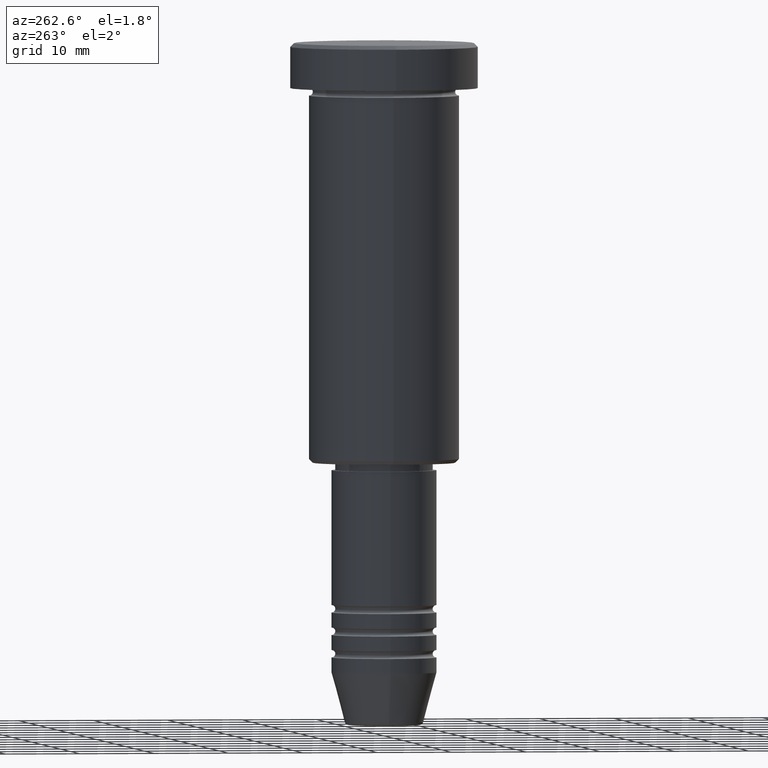
[diagram: clean part render]
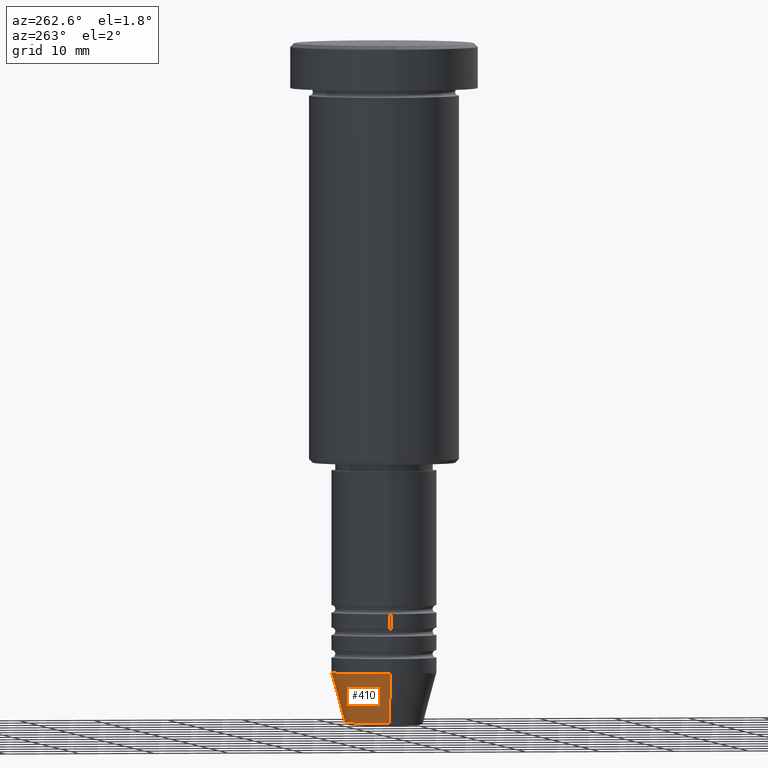
[diagram: same view with one face highlighted and labeled with its STEP entity id]
A machine part, auxiliary view. The second image highlights one B-rep face of the part: STEP entity #410.
In plain terms, the highlighted conical surface has half-angle 15 deg.
Its self-contained STEP definition (entity closure, byte-faithful):
#14 = VERTEX_POINT ( 'NONE', #1176 ) ;
#31 = CARTESIAN_POINT ( 'NONE',  ( 7.000000000000000000, 0.000000000000000000, -84.00000000000000000 ) ) ;
#36 = CARTESIAN_POINT ( 'NONE',  ( 0.000000000000000000, 0.000000000000000000, -84.00000000000000000 ) ) ;
#40 = CARTESIAN_POINT ( 'NONE',  ( 0.000000000000000000, 0.000000000000000000, -84.00000000000000000 ) ) ;
#58 = ORIENTED_EDGE ( 'NONE', *, *, #639, .F. ) ;
#80 = AXIS2_PLACEMENT_3D ( 'NONE', #597, #148, #503 ) ;
#126 = DIRECTION ( 'NONE',  ( -0.000000000000000000, -0.000000000000000000, 1.000000000000000000 ) ) ;
#130 = DIRECTION ( 'NONE',  ( -0.000000000000000000, -0.000000000000000000, 1.000000000000000000 ) ) ;
#146 = EDGE_LOOP ( 'NONE', ( #467, #829, #188, #58 ) ) ;
#148 = DIRECTION ( 'NONE',  ( -0.000000000000000000, -0.000000000000000000, 1.000000000000000000 ) ) ;
#149 = EDGE_CURVE ( 'NONE', #516, #166, #741, .T. ) ;
#166 = VERTEX_POINT ( 'NONE', #1122 ) ;
#175 = CIRCLE ( 'NONE', #80, 5.223655072137193045 ) ;
#188 = ORIENTED_EDGE ( 'NONE', *, *, #1074, .F. ) ;
#298 = CARTESIAN_POINT ( 'NONE',  ( 7.000000000000000000, 0.000000000000000000, -84.00000000000000000 ) ) ;
#317 = CARTESIAN_POINT ( 'NONE',  ( -5.223655072137193045, 7.484830028987060174E-16, -90.62940952255124216 ) ) ;
#388 = DIRECTION ( 'NONE',  ( 0.2588190451025213501, 0.000000000000000000, 0.9659258262890680902 ) ) ;
#392 = DIRECTION ( 'NONE',  ( 1.000000000000000000, 0.000000000000000000, 0.000000000000000000 ) ) ;
#410 = ADVANCED_FACE ( 'NONE', ( #1031 ), #1168, .T. ) ;
#416 = DIRECTION ( 'NONE',  ( 1.000000000000000000, 0.000000000000000000, 0.000000000000000000 ) ) ;
#467 = ORIENTED_EDGE ( 'NONE', *, *, #849, .T. ) ;
#472 = DIRECTION ( 'NONE',  ( -0.2588190451025213501, 3.169619151431772337E-17, 0.9659258262890680902 ) ) ;
#503 = DIRECTION ( 'NONE',  ( 1.000000000000000000, 0.000000000000000000, 0.000000000000000000 ) ) ;
#516 = VERTEX_POINT ( 'NONE', #317 ) ;
#534 = AXIS2_PLACEMENT_3D ( 'NONE', #40, #126, #416 ) ;
#597 = CARTESIAN_POINT ( 'NONE',  ( 0.000000000000000000, 0.000000000000000000, -90.62940952255124216 ) ) ;
#606 = AXIS2_PLACEMENT_3D ( 'NONE', #36, #130, #392 ) ;
#639 = EDGE_CURVE ( 'NONE', #14, #644, #852, .T. ) ;
#644 = VERTEX_POINT ( 'NONE', #298 ) ;
#741 = LINE ( 'NONE', #1032, #782 ) ;
#782 = VECTOR ( 'NONE', #472, 1000.000000000000000 ) ;
#829 = ORIENTED_EDGE ( 'NONE', *, *, #149, .T. ) ;
#849 = EDGE_CURVE ( 'NONE', #14, #516, #175, .T. ) ;
#852 = LINE ( 'NONE', #31, #1030 ) ;
#1030 = VECTOR ( 'NONE', #388, 1000.000000000000000 ) ;
#1031 = FACE_OUTER_BOUND ( 'NONE', #146, .T. ) ;
#1032 = CARTESIAN_POINT ( 'NONE',  ( -7.000000000000000000, 8.572527594031473190E-16, -84.00000000000000000 ) ) ;
#1074 = EDGE_CURVE ( 'NONE', #644, #166, #1150, .T. ) ;
#1122 = CARTESIAN_POINT ( 'NONE',  ( -7.000000000000000000, 8.572527594031473190E-16, -84.00000000000000000 ) ) ;
#1150 = CIRCLE ( 'NONE', #606, 7.000000000000000000 ) ;
#1168 = CONICAL_SURFACE ( 'NONE', #534, 7.000000000000000000, 0.2617993877991500740 ) ;
#1176 = CARTESIAN_POINT ( 'NONE',  ( 5.223655072137193045, 0.000000000000000000, -90.62940952255124216 ) ) ;